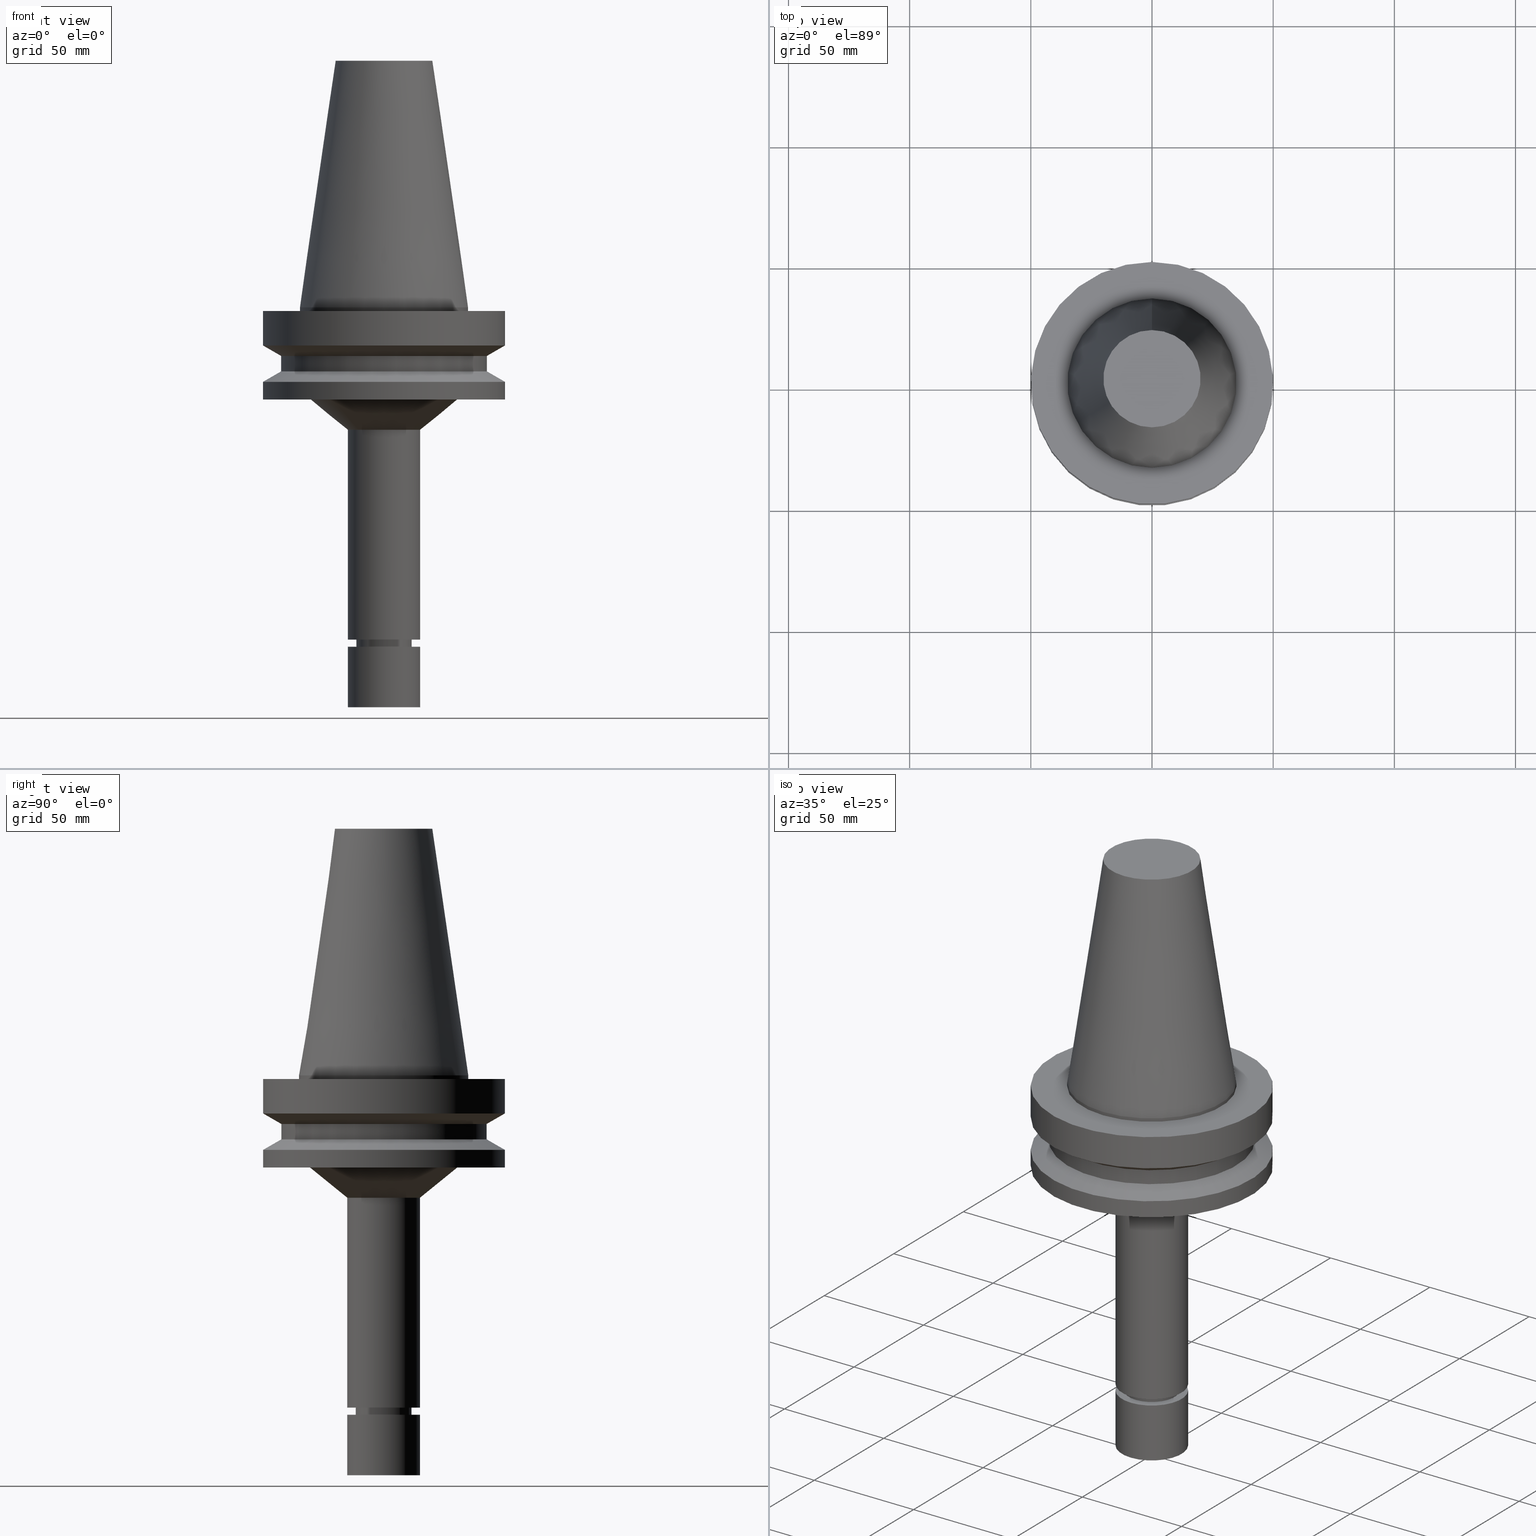
[diagram: canonical four-view strip — front | top / right | iso, engineering-drawing reading convention]
A machine part, canonical four-view strip (front | top / right | iso — engineering-drawing reading convention). The complete STEP part file that produces these views, byte-faithful:
ISO-10303-21;
HEADER;
FILE_DESCRIPTION((''),'1');
FILE_NAME('V:/90_\X2\53D65F9730C730FC30BF\X0\/00_\X2\6DE18DEF30C730FC30BF\X0\/ALL/BBT-BKUS\X2\FF76FF80FF9BFF78FF9E752852A05DE556F3\X0\201801/BBT50-MEGAER/BBT50-MEGAER16-165NL.stp','2018-02-02T07:56:17',(''),(''),'Spatial Interop R21 SP3','Kubotek KeyCreator 2011 V10.0.2 (22737)',' ');
FILE_SCHEMA(('automotive_design'));
ENDSEC;
DATA;
#1=MECHANICAL_DESIGN_GEOMETRIC_PRESENTATION_REPRESENTATION(' ',(#14,#15,#16,#17,#18,#19,#20,#21,#22,#23,#24,#25,#26,#27,#28,#29,#30,#31,#32,#33,#34,#35,#36,#37,#38,#39,#40,#41,#42,#43,#44,#45,#46,#47,#48,#49,#50,#51,#52,#53,#54,#55),#10);
#2=PRODUCT_DEFINITION_CONTEXT('',#56,'design');
#3=APPLICATION_PROTOCOL_DEFINITION('INTERNATIONAL STANDARD','automotive_design',1994,#56);
#4=PRODUCT_CATEGORY_RELATIONSHIP('NONE','NONE',#57,#58);
#5=SHAPE_DEFINITION_REPRESENTATION(#59,#60);
#6=PRODUCT_DEFINITION_CONTEXT('',#61,'design');
#7=APPLICATION_PROTOCOL_DEFINITION('INTERNATIONAL STANDARD','automotive_design',1994,#61);
#8=PRODUCT_CATEGORY_RELATIONSHIP('NONE','NONE',#62,#63);
#9=SHAPE_DEFINITION_REPRESENTATION(#64,#65);
#10= (GEOMETRIC_REPRESENTATION_CONTEXT(3)GLOBAL_UNCERTAINTY_ASSIGNED_CONTEXT((#68))GLOBAL_UNIT_ASSIGNED_CONTEXT((#70,#71,#72))REPRESENTATION_CONTEXT('NONE','WORKSPACE'));
#14=STYLED_ITEM('',(#74,#75),#76);
#15=STYLED_ITEM('',(#77,#78),#79);
#16=STYLED_ITEM('',(#80),#81);
#17=STYLED_ITEM('',(#82,#83),#84);
#18=STYLED_ITEM('',(#85,#86),#87);
#19=STYLED_ITEM('',(#88,#89),#90);
#20=STYLED_ITEM('',(#91,#92),#93);
#21=STYLED_ITEM('',(#94),#95);
#22=STYLED_ITEM('',(#96),#97);
#23=STYLED_ITEM('',(#98),#99);
#24=STYLED_ITEM('',(#100,#101),#102);
#25=STYLED_ITEM('',(#103,#104),#105);
#26=STYLED_ITEM('',(#106),#107);
#27=STYLED_ITEM('',(#108),#109);
#28=STYLED_ITEM('',(#110,#111),#112);
#29=STYLED_ITEM('',(#113,#114),#115);
#30=STYLED_ITEM('',(#116,#117),#118);
#31=STYLED_ITEM('',(#119,#120),#121);
#32=STYLED_ITEM('',(#122,#123),#124);
#33=STYLED_ITEM('',(#125),#126);
#34=STYLED_ITEM('',(#127),#128);
#35=STYLED_ITEM('',(#129),#130);
#36=STYLED_ITEM('',(#131,#132),#133);
#37=STYLED_ITEM('',(#134),#135);
#38=STYLED_ITEM('',(#136),#137);
#39=STYLED_ITEM('',(#138),#139);
#40=STYLED_ITEM('',(#140,#141),#142);
#41=STYLED_ITEM('',(#143),#144);
#42=STYLED_ITEM('',(#145),#146);
#43=STYLED_ITEM('',(#147,#148),#149);
#44=STYLED_ITEM('',(#150,#151),#152);
#45=STYLED_ITEM('',(#153,#154),#155);
#46=STYLED_ITEM('',(#156,#157),#158);
#47=STYLED_ITEM('',(#159),#160);
#48=STYLED_ITEM('',(#161,#162),#163);
#49=STYLED_ITEM('',(#164,#165),#166);
#50=STYLED_ITEM('',(#167,#168),#169);
#51=STYLED_ITEM('',(#170,#171),#172);
#52=STYLED_ITEM('',(#173),#174);
#53=STYLED_ITEM('',(#175),#176);
#54=STYLED_ITEM('',(#177),#178);
#55=STYLED_ITEM('',(#179),#180);
#56=APPLICATION_CONTEXT(' ');
#57=PRODUCT_CATEGORY('part','NONE');
#58=PRODUCT_RELATED_PRODUCT_CATEGORY('detail',' ',(#181));
#59=PRODUCT_DEFINITION_SHAPE('NONE','NONE',#182);
#60=ADVANCED_BREP_SHAPE_REPRESENTATION('Unnamed[1]',(#149,#183),#10);
#61=APPLICATION_CONTEXT(' ');
#62=PRODUCT_CATEGORY('part','NONE');
#63=PRODUCT_RELATED_PRODUCT_CATEGORY('detail',' ',(#184));
#64=PRODUCT_DEFINITION_SHAPE('NONE','NONE',#185);
#65=ADVANCED_BREP_SHAPE_REPRESENTATION('Unnamed[1]',(#166,#186),#10);
#68=UNCERTAINTY_MEASURE_WITH_UNIT(LENGTH_MEASURE(1.0E-006),#70,'','');
#70= (CONVERSION_BASED_UNIT('MILLIMETRE',#189)LENGTH_UNIT()NAMED_UNIT(#192));
#71= (NAMED_UNIT(#194)PLANE_ANGLE_UNIT()SI_UNIT($,.RADIAN.));
#72= (NAMED_UNIT(#194)SOLID_ANGLE_UNIT()SI_UNIT($,.STERADIAN.));
#74=PRESENTATION_STYLE_ASSIGNMENT((#200));
#75=PRESENTATION_STYLE_ASSIGNMENT((#201));
#76=ADVANCED_FACE('Unnamed[1]',(#202,#203),#204,.T.);
#77=PRESENTATION_STYLE_ASSIGNMENT((#205));
#78=PRESENTATION_STYLE_ASSIGNMENT((#206));
#79=ADVANCED_FACE('Unnamed[1]',(#207,#208),#209,.T.);
#80=PRESENTATION_STYLE_ASSIGNMENT((#210));
#81=EDGE_CURVE('Unnamed[1]',#211,#211,#212,.T.);
#82=PRESENTATION_STYLE_ASSIGNMENT((#213));
#83=PRESENTATION_STYLE_ASSIGNMENT((#214));
#84=ADVANCED_FACE('Unnamed[1]',(#215,#216),#217,.T.);
#85=PRESENTATION_STYLE_ASSIGNMENT((#218));
#86=PRESENTATION_STYLE_ASSIGNMENT((#219));
#87=ADVANCED_FACE('Unnamed[1]',(#220,#221),#222,.T.);
#88=PRESENTATION_STYLE_ASSIGNMENT((#223));
#89=PRESENTATION_STYLE_ASSIGNMENT((#224));
#90=ADVANCED_FACE('Unnamed[1]',(#225,#226),#227,.T.);
#91=PRESENTATION_STYLE_ASSIGNMENT((#228));
#92=PRESENTATION_STYLE_ASSIGNMENT((#229));
#93=ADVANCED_FACE('Unnamed[1]',(#230,#231),#232,.T.);
#94=PRESENTATION_STYLE_ASSIGNMENT((#233));
#95=EDGE_CURVE('Unnamed[1]',#234,#234,#235,.T.);
#96=PRESENTATION_STYLE_ASSIGNMENT((#236));
#97=EDGE_CURVE('Unnamed[1]',#237,#237,#238,.T.);
#98=PRESENTATION_STYLE_ASSIGNMENT((#239));
#99=EDGE_CURVE('Unnamed[1]',#240,#240,#241,.T.);
#100=PRESENTATION_STYLE_ASSIGNMENT((#242));
#101=PRESENTATION_STYLE_ASSIGNMENT((#243));
#102=ADVANCED_FACE('Unnamed[1]',(#244),#245,.T.);
#103=PRESENTATION_STYLE_ASSIGNMENT((#246));
#104=PRESENTATION_STYLE_ASSIGNMENT((#247));
#105=ADVANCED_FACE('Unnamed[1]',(#248),#249,.T.);
#106=PRESENTATION_STYLE_ASSIGNMENT((#250));
#107=EDGE_CURVE('Unnamed[1]',#251,#251,#252,.T.);
#108=PRESENTATION_STYLE_ASSIGNMENT((#253));
#109=EDGE_CURVE('Unnamed[1]',#254,#254,#255,.T.);
#110=PRESENTATION_STYLE_ASSIGNMENT((#256));
#111=PRESENTATION_STYLE_ASSIGNMENT((#257));
#112=ADVANCED_FACE('Unnamed[1]',(#258,#259),#260,.T.);
#113=PRESENTATION_STYLE_ASSIGNMENT((#261));
#114=PRESENTATION_STYLE_ASSIGNMENT((#262));
#115=ADVANCED_FACE('Unnamed[1]',(#263,#264),#265,.T.);
#116=PRESENTATION_STYLE_ASSIGNMENT((#266));
#117=PRESENTATION_STYLE_ASSIGNMENT((#267));
#118=ADVANCED_FACE('Unnamed[1]',(#268,#269),#270,.T.);
#119=PRESENTATION_STYLE_ASSIGNMENT((#271));
#120=PRESENTATION_STYLE_ASSIGNMENT((#272));
#121=ADVANCED_FACE('Unnamed[1]',(#273),#274,.T.);
#122=PRESENTATION_STYLE_ASSIGNMENT((#275));
#123=PRESENTATION_STYLE_ASSIGNMENT((#276));
#124=ADVANCED_FACE('Unnamed[1]',(#277,#278),#279,.T.);
#125=PRESENTATION_STYLE_ASSIGNMENT((#280));
#126=EDGE_CURVE('Unnamed[1]',#281,#281,#282,.T.);
#127=PRESENTATION_STYLE_ASSIGNMENT((#283));
#128=EDGE_CURVE('Unnamed[1]',#284,#284,#285,.T.);
#129=PRESENTATION_STYLE_ASSIGNMENT((#286));
#130=EDGE_CURVE('Unnamed[1]',#287,#287,#288,.T.);
#131=PRESENTATION_STYLE_ASSIGNMENT((#289));
#132=PRESENTATION_STYLE_ASSIGNMENT((#290));
#133=ADVANCED_FACE('Unnamed[1]',(#291),#292,.T.);
#134=PRESENTATION_STYLE_ASSIGNMENT((#293));
#135=EDGE_CURVE('Unnamed[1]',#294,#294,#295,.T.);
#136=PRESENTATION_STYLE_ASSIGNMENT((#296));
#137=EDGE_CURVE('Unnamed[1]',#297,#297,#298,.T.);
#138=PRESENTATION_STYLE_ASSIGNMENT((#299));
#139=EDGE_CURVE('Unnamed[1]',#300,#300,#301,.T.);
#140=PRESENTATION_STYLE_ASSIGNMENT((#302));
#141=PRESENTATION_STYLE_ASSIGNMENT((#303));
#142=ADVANCED_FACE('Unnamed[1]',(#304,#305),#306,.T.);
#143=PRESENTATION_STYLE_ASSIGNMENT((#307));
#144=EDGE_CURVE('Unnamed[1]',#308,#308,#309,.T.);
#145=PRESENTATION_STYLE_ASSIGNMENT((#310));
#146=EDGE_CURVE('Unnamed[1]',#311,#311,#312,.T.);
#147=PRESENTATION_STYLE_ASSIGNMENT((#313));
#148=PRESENTATION_STYLE_ASSIGNMENT((#314));
#149=MANIFOLD_SOLID_BREP('Unnamed[1]',#315);
#150=PRESENTATION_STYLE_ASSIGNMENT((#316));
#151=PRESENTATION_STYLE_ASSIGNMENT((#317));
#152=ADVANCED_FACE('Unnamed[1]',(#318,#319),#320,.T.);
#153=PRESENTATION_STYLE_ASSIGNMENT((#321));
#154=PRESENTATION_STYLE_ASSIGNMENT((#322));
#155=ADVANCED_FACE('Unnamed[1]',(#323,#324),#325,.T.);
#156=PRESENTATION_STYLE_ASSIGNMENT((#326));
#157=PRESENTATION_STYLE_ASSIGNMENT((#327));
#158=ADVANCED_FACE('Unnamed[1]',(#328,#329),#330,.T.);
#159=PRESENTATION_STYLE_ASSIGNMENT((#331));
#160=EDGE_CURVE('Unnamed[1]',#332,#332,#333,.T.);
#161=PRESENTATION_STYLE_ASSIGNMENT((#334));
#162=PRESENTATION_STYLE_ASSIGNMENT((#335));
#163=ADVANCED_FACE('Unnamed[1]',(#336,#337),#338,.T.);
#164=PRESENTATION_STYLE_ASSIGNMENT((#339));
#165=PRESENTATION_STYLE_ASSIGNMENT((#340));
#166=MANIFOLD_SOLID_BREP('Unnamed[1]',#341);
#167=PRESENTATION_STYLE_ASSIGNMENT((#342));
#168=PRESENTATION_STYLE_ASSIGNMENT((#343));
#169=ADVANCED_FACE('Unnamed[1]',(#344,#345),#346,.T.);
#170=PRESENTATION_STYLE_ASSIGNMENT((#347));
#171=PRESENTATION_STYLE_ASSIGNMENT((#348));
#172=ADVANCED_FACE('Unnamed[1]',(#349,#350),#351,.T.);
#173=PRESENTATION_STYLE_ASSIGNMENT((#352));
#174=EDGE_CURVE('Unnamed[1]',#353,#353,#354,.T.);
#175=PRESENTATION_STYLE_ASSIGNMENT((#355));
#176=EDGE_CURVE('Unnamed[1]',#356,#356,#357,.T.);
#177=PRESENTATION_STYLE_ASSIGNMENT((#358));
#178=EDGE_CURVE('Unnamed[1]',#359,#359,#360,.T.);
#179=PRESENTATION_STYLE_ASSIGNMENT((#361));
#180=EDGE_CURVE('Unnamed[1]',#362,#362,#363,.T.);
#181=PRODUCT('Unnamed[1]','Unnamed[1]','PART-Unnamed[1]-DESC',(#364));
#182=PRODUCT_DEFINITION('NONE','NONE',#365,#2);
#183=AXIS2_PLACEMENT_3D('',#366,#367,#368);
#184=PRODUCT('Unnamed[1]','Unnamed[1]','PART-Unnamed[1]-DESC',(#369));
#185=PRODUCT_DEFINITION('NONE','NONE',#370,#6);
#186=AXIS2_PLACEMENT_3D('',#371,#372,#373);
#189=LENGTH_MEASURE_WITH_UNIT(LENGTH_MEASURE(1.0),#374);
#192=DIMENSIONAL_EXPONENTS(1.0,0.0,0.0,0.0,0.0,0.0,0.0);
#194=DIMENSIONAL_EXPONENTS(0.0,0.0,0.0,0.0,0.0,0.0,0.0);
#200=SURFACE_STYLE_USAGE(.BOTH.,#375);
#201=CURVE_STYLE('',#376,POSITIVE_LENGTH_MEASURE(1000.0),#377);
#202=FACE_BOUND('',#378,.T.);
#203=FACE_BOUND('',#379,.T.);
#204=CYLINDRICAL_SURFACE('',#380,11.4999999999964);
#205=SURFACE_STYLE_USAGE(.BOTH.,#381);
#206=CURVE_STYLE('',#382,POSITIVE_LENGTH_MEASURE(1000.0),#383);
#207=FACE_BOUND('',#384,.T.);
#208=FACE_BOUND('',#385,.T.);
#209=CONICAL_SURFACE('',#386,46.25,1.04719755108882);
#210=CURVE_STYLE('',#387,POSITIVE_LENGTH_MEASURE(1000.0),#388);
#211=VERTEX_POINT('',#389);
#212=CIRCLE('',#390,34.925);
#213=SURFACE_STYLE_USAGE(.BOTH.,#391);
#214=CURVE_STYLE('',#392,POSITIVE_LENGTH_MEASURE(1000.0),#393);
#215=FACE_BOUND('',#394,.T.);
#216=FACE_BOUND('',#395,.T.);
#217=CONICAL_SURFACE('',#396,46.25,1.04719755108882);
#218=SURFACE_STYLE_USAGE(.BOTH.,#397);
#219=CURVE_STYLE('',#398,POSITIVE_LENGTH_MEASURE(1000.0),#399);
#220=FACE_BOUND('',#400,.T.);
#221=FACE_BOUND('',#401,.T.);
#222=CONICAL_SURFACE('',#402,10.4499999999999,0.523598775598244);
#223=SURFACE_STYLE_USAGE(.BOTH.,#403);
#224=CURVE_STYLE('',#404,POSITIVE_LENGTH_MEASURE(1000.0),#405);
#225=FACE_BOUND('',#406,.T.);
#226=FACE_BOUND('',#407,.T.);
#227=CONICAL_SURFACE('',#408,22.6818898842099,0.889162048815194);
#228=SURFACE_STYLE_USAGE(.BOTH.,#409);
#229=CURVE_STYLE('',#410,POSITIVE_LENGTH_MEASURE(1000.0),#411);
#230=FACE_BOUND('',#412,.T.);
#231=FACE_BOUND('',#413,.T.);
#232=CYLINDRICAL_SURFACE('',#414,34.925);
#233=CURVE_STYLE('',#415,POSITIVE_LENGTH_MEASURE(1000.0),#416);
#234=VERTEX_POINT('',#417);
#235=CIRCLE('',#418,50.0);
#236=CURVE_STYLE('',#419,POSITIVE_LENGTH_MEASURE(1000.0),#420);
#237=VERTEX_POINT('',#421);
#238=CIRCLE('',#422,15.0000000000001);
#239=CURVE_STYLE('',#423,POSITIVE_LENGTH_MEASURE(1000.0),#424);
#240=VERTEX_POINT('',#425);
#241=CIRCLE('',#426,50.0);
#242=SURFACE_STYLE_USAGE(.BOTH.,#427);
#243=CURVE_STYLE('',#428,POSITIVE_LENGTH_MEASURE(1000.0),#429);
#244=FACE_OUTER_BOUND('',#430,.T.);
#245=PLANE('',#431);
#246=SURFACE_STYLE_USAGE(.BOTH.,#432);
#247=CURVE_STYLE('',#433,POSITIVE_LENGTH_MEASURE(1000.0),#434);
#248=FACE_OUTER_BOUND('',#435,.T.);
#249=PLANE('',#436);
#250=CURVE_STYLE('',#437,POSITIVE_LENGTH_MEASURE(1000.0),#438);
#251=VERTEX_POINT('',#439);
#252=CIRCLE('',#440,9.89999999999961);
#253=CURVE_STYLE('',#441,POSITIVE_LENGTH_MEASURE(1000.0),#442);
#254=VERTEX_POINT('',#443);
#255=CIRCLE('',#444,10.9999999999999);
#256=SURFACE_STYLE_USAGE(.BOTH.,#445);
#257=CURVE_STYLE('',#446,POSITIVE_LENGTH_MEASURE(1000.0),#447);
#258=FACE_BOUND('',#448,.T.);
#259=FACE_BOUND('',#449,.T.);
#260=CYLINDRICAL_SURFACE('',#450,15.0);
#261=SURFACE_STYLE_USAGE(.BOTH.,#451);
#262=CURVE_STYLE('',#452,POSITIVE_LENGTH_MEASURE(1000.0),#453);
#263=FACE_BOUND('',#454,.T.);
#264=FACE_BOUND('',#455,.T.);
#265=CYLINDRICAL_SURFACE('',#456,50.0);
#266=SURFACE_STYLE_USAGE(.BOTH.,#457);
#267=CURVE_STYLE('',#458,POSITIVE_LENGTH_MEASURE(1000.0),#459);
#268=FACE_BOUND('',#460,.T.);
#269=FACE_BOUND('',#461,.T.);
#270=CYLINDRICAL_SURFACE('',#462,11.0000000000001);
#271=SURFACE_STYLE_USAGE(.BOTH.,#463);
#272=CURVE_STYLE('',#464,POSITIVE_LENGTH_MEASURE(1000.0),#465);
#273=FACE_OUTER_BOUND('',#466,.T.);
#274=PLANE('',#467);
#275=SURFACE_STYLE_USAGE(.BOTH.,#468);
#276=CURVE_STYLE('',#469,POSITIVE_LENGTH_MEASURE(1000.0),#470);
#277=FACE_BOUND('',#471,.T.);
#278=FACE_OUTER_BOUND('',#472,.T.);
#279=PLANE('',#473);
#280=CURVE_STYLE('',#474,POSITIVE_LENGTH_MEASURE(1000.0),#475);
#281=VERTEX_POINT('',#476);
#282=CIRCLE('',#477,15.0000000000002);
#283=CURVE_STYLE('',#478,POSITIVE_LENGTH_MEASURE(1000.0),#479);
#284=VERTEX_POINT('',#480);
#285=CIRCLE('',#481,15.0);
#286=CURVE_STYLE('',#482,POSITIVE_LENGTH_MEASURE(1000.0),#483);
#287=VERTEX_POINT('',#484);
#288=CIRCLE('',#485,50.0);
#289=SURFACE_STYLE_USAGE(.BOTH.,#486);
#290=CURVE_STYLE('',#487,POSITIVE_LENGTH_MEASURE(1000.0),#488);
#291=FACE_OUTER_BOUND('',#489,.T.);
#292=PLANE('',#490);
#293=CURVE_STYLE('',#491,POSITIVE_LENGTH_MEASURE(1000.0),#492);
#294=VERTEX_POINT('',#493);
#295=CIRCLE('',#494,11.5000000000021);
#296=CURVE_STYLE('',#495,POSITIVE_LENGTH_MEASURE(1000.0),#496);
#297=VERTEX_POINT('',#497);
#298=CIRCLE('',#498,30.3637797684197);
#299=CURVE_STYLE('',#499,POSITIVE_LENGTH_MEASURE(1000.0),#500);
#300=VERTEX_POINT('',#501);
#301=CIRCLE('',#502,20.0791666651884);
#302=SURFACE_STYLE_USAGE(.BOTH.,#503);
#303=CURVE_STYLE('',#504,POSITIVE_LENGTH_MEASURE(1000.0),#505);
#304=FACE_OUTER_BOUND('',#506,.T.);
#305=FACE_BOUND('',#507,.T.);
#306=PLANE('',#508);
#307=CURVE_STYLE('',#509,POSITIVE_LENGTH_MEASURE(1000.0),#510);
#308=VERTEX_POINT('',#511);
#309=CIRCLE('',#512,42.5);
#310=CURVE_STYLE('',#513,POSITIVE_LENGTH_MEASURE(1000.0),#514);
#311=VERTEX_POINT('',#515);
#312=CIRCLE('',#516,11.4999999999907);
#313=SURFACE_STYLE_USAGE(.BOTH.,#517);
#314=CURVE_STYLE('',#518,POSITIVE_LENGTH_MEASURE(1000.0),#519);
#315=CLOSED_SHELL('',(#121,#87,#118,#152,#76,#163,#169,#90,#142,#115,#79,#158,#84,#155,#124,#93,#172,#105));
#316=SURFACE_STYLE_USAGE(.BOTH.,#520);
#317=CURVE_STYLE('',#521,POSITIVE_LENGTH_MEASURE(1000.0),#522);
#318=FACE_BOUND('',#523,.T.);
#319=FACE_BOUND('',#524,.T.);
#320=CONICAL_SURFACE('',#525,11.250000000001,1.04719755118891);
#321=SURFACE_STYLE_USAGE(.BOTH.,#526);
#322=CURVE_STYLE('',#527,POSITIVE_LENGTH_MEASURE(1000.0),#528);
#323=FACE_BOUND('',#529,.T.);
#324=FACE_BOUND('',#530,.T.);
#325=CYLINDRICAL_SURFACE('',#531,50.0);
#326=SURFACE_STYLE_USAGE(.BOTH.,#532);
#327=CURVE_STYLE('',#533,POSITIVE_LENGTH_MEASURE(1000.0),#534);
#328=FACE_BOUND('',#535,.T.);
#329=FACE_BOUND('',#536,.T.);
#330=CYLINDRICAL_SURFACE('',#537,42.5);
#331=CURVE_STYLE('',#538,POSITIVE_LENGTH_MEASURE(1000.0),#539);
#332=VERTEX_POINT('',#540);
#333=CIRCLE('',#541,15.0000000000001);
#334=SURFACE_STYLE_USAGE(.BOTH.,#542);
#335=CURVE_STYLE('',#543,POSITIVE_LENGTH_MEASURE(1000.0),#544);
#336=FACE_OUTER_BOUND('',#545,.T.);
#337=FACE_BOUND('',#546,.T.);
#338=PLANE('',#547);
#339=SURFACE_STYLE_USAGE(.BOTH.,#548);
#340=CURVE_STYLE('',#549,POSITIVE_LENGTH_MEASURE(1000.0),#550);
#341=CLOSED_SHELL('',(#133,#102,#112));
#342=SURFACE_STYLE_USAGE(.BOTH.,#551);
#343=CURVE_STYLE('',#552,POSITIVE_LENGTH_MEASURE(1000.0),#553);
#344=FACE_BOUND('',#554,.T.);
#345=FACE_BOUND('',#555,.T.);
#346=CYLINDRICAL_SURFACE('',#556,15.0000000000002);
#347=SURFACE_STYLE_USAGE(.BOTH.,#557);
#348=CURVE_STYLE('',#558,POSITIVE_LENGTH_MEASURE(1000.0),#559);
#349=FACE_BOUND('',#560,.T.);
#350=FACE_BOUND('',#561,.T.);
#351=CONICAL_SURFACE('',#562,27.5020833325942,0.144812498253157);
#352=CURVE_STYLE('',#563,POSITIVE_LENGTH_MEASURE(1000.0),#564);
#353=VERTEX_POINT('',#565);
#354=CIRCLE('',#566,42.5);
#355=CURVE_STYLE('',#567,POSITIVE_LENGTH_MEASURE(1000.0),#568);
#356=VERTEX_POINT('',#569);
#357=CIRCLE('',#570,34.925);
#358=CURVE_STYLE('',#571,POSITIVE_LENGTH_MEASURE(1000.0),#572);
#359=VERTEX_POINT('',#573);
#360=CIRCLE('',#574,11.0000000000002);
#361=CURVE_STYLE('',#575,POSITIVE_LENGTH_MEASURE(1000.0),#576);
#362=VERTEX_POINT('',#577);
#363=CIRCLE('',#578,50.0);
#364=PRODUCT_CONTEXT('',#56,'mechanical');
#365=PRODUCT_DEFINITION_FORMATION_WITH_SPECIFIED_SOURCE(' ','NONE',#181,.NOT_KNOWN.);
#366=CARTESIAN_POINT('',(0.0,0.0,0.0));
#367=DIRECTION('',(0.0,0.0,1.0));
#368=DIRECTION('',(1.0,0.0,0.0));
#369=PRODUCT_CONTEXT('',#61,'mechanical');
#370=PRODUCT_DEFINITION_FORMATION_WITH_SPECIFIED_SOURCE(' ','NONE',#184,.NOT_KNOWN.);
#371=CARTESIAN_POINT('',(0.0,0.0,0.0));
#372=DIRECTION('',(0.0,0.0,1.0));
#373=DIRECTION('',(1.0,0.0,0.0));
#374= (NAMED_UNIT(#192)LENGTH_UNIT()SI_UNIT(.MILLI.,.METRE.));
#375=SURFACE_SIDE_STYLE('',(#580));
#376=DRAUGHTING_PRE_DEFINED_CURVE_FONT('continuous');
#377=COLOUR_RGB('',0.0,1.0,0.0);
#378=EDGE_LOOP('',(#581));
#379=EDGE_LOOP('',(#582));
#380=AXIS2_PLACEMENT_3D('',#583,#584,#585);
#381=SURFACE_SIDE_STYLE('',(#586));
#382=DRAUGHTING_PRE_DEFINED_CURVE_FONT('continuous');
#383=COLOUR_RGB('',0.0,1.0,0.0);
#384=EDGE_LOOP('',(#587));
#385=EDGE_LOOP('',(#588));
#386=AXIS2_PLACEMENT_3D('',#589,#590,#591);
#387=DRAUGHTING_PRE_DEFINED_CURVE_FONT('continuous');
#388=COLOUR_RGB('',0.0,1.0,0.0);
#389=CARTESIAN_POINT('',(9.18485099360511E-017,34.925,-1.5));
#390=AXIS2_PLACEMENT_3D('',#592,#593,#594);
#391=SURFACE_SIDE_STYLE('',(#595));
#392=DRAUGHTING_PRE_DEFINED_CURVE_FONT('continuous');
#393=COLOUR_RGB('',0.0,1.0,0.0);
#394=EDGE_LOOP('',(#596));
#395=EDGE_LOOP('',(#597));
#396=AXIS2_PLACEMENT_3D('',#598,#599,#600);
#397=SURFACE_SIDE_STYLE('',(#601));
#398=DRAUGHTING_PRE_DEFINED_CURVE_FONT('continuous');
#399=COLOUR_RGB('',0.0,1.0,0.0);
#400=EDGE_LOOP('',(#602));
#401=EDGE_LOOP('',(#603));
#402=AXIS2_PLACEMENT_3D('',#604,#605,#606);
#403=SURFACE_SIDE_STYLE('',(#607));
#404=DRAUGHTING_PRE_DEFINED_CURVE_FONT('continuous');
#405=COLOUR_RGB('',0.0,1.0,0.0);
#406=EDGE_LOOP('',(#608));
#407=EDGE_LOOP('',(#609));
#408=AXIS2_PLACEMENT_3D('',#610,#611,#612);
#409=SURFACE_SIDE_STYLE('',(#613));
#410=DRAUGHTING_PRE_DEFINED_CURVE_FONT('continuous');
#411=COLOUR_RGB('',0.0,1.0,0.0);
#412=EDGE_LOOP('',(#614));
#413=EDGE_LOOP('',(#615));
#414=AXIS2_PLACEMENT_3D('',#616,#617,#618);
#415=DRAUGHTING_PRE_DEFINED_CURVE_FONT('continuous');
#416=COLOUR_RGB('',0.0,1.0,0.0);
#417=CARTESIAN_POINT('',(9.61347737330674E-016,50.0,-15.7));
#418=AXIS2_PLACEMENT_3D('',#619,#620,#621);
#419=DRAUGHTING_PRE_DEFINED_CURVE_FONT('continuous');
#420=COLOUR_RGB('',0.0,1.0,0.0);
#421=CARTESIAN_POINT('',(8.57252759403147E-015,15.0000000000001,-140.0));
#422=AXIS2_PLACEMENT_3D('',#622,#623,#624);
#423=DRAUGHTING_PRE_DEFINED_CURVE_FONT('continuous');
#424=COLOUR_RGB('',0.0,1.0,0.0);
#425=CARTESIAN_POINT('',(9.18485099360509E-017,50.0,-1.49999999999999));
#426=AXIS2_PLACEMENT_3D('',#625,#626,#627);
#427=SURFACE_SIDE_STYLE('',(#628));
#428=DRAUGHTING_PRE_DEFINED_CURVE_FONT('continuous');
#429=COLOUR_RGB('',0.0,1.0,0.0);
#430=EDGE_LOOP('',(#629));
#431=AXIS2_PLACEMENT_3D('',#630,#631,#632);
#432=SURFACE_SIDE_STYLE('',(#633));
#433=DRAUGHTING_PRE_DEFINED_CURVE_FONT('continuous');
#434=COLOUR_RGB('',0.0,1.0,0.0);
#435=EDGE_LOOP('',(#634));
#436=AXIS2_PLACEMENT_3D('',#635,#636,#637);
#437=DRAUGHTING_PRE_DEFINED_CURVE_FONT('continuous');
#438=COLOUR_RGB('',0.0,1.0,0.0);
#439=CARTESIAN_POINT('',(9.56449150134077E-015,9.89999999999964,-156.199999999999));
#440=AXIS2_PLACEMENT_3D('',#638,#639,#640);
#441=DRAUGHTING_PRE_DEFINED_CURVE_FONT('continuous');
#442=COLOUR_RGB('',0.0,1.0,0.0);
#443=CARTESIAN_POINT('',(8.76847108189496E-015,10.9999999999999,-143.199999999998));
#444=AXIS2_PLACEMENT_3D('',#641,#642,#643);
#445=SURFACE_SIDE_STYLE('',(#644));
#446=DRAUGHTING_PRE_DEFINED_CURVE_FONT('continuous');
#447=COLOUR_RGB('',0.0,1.0,0.0);
#448=EDGE_LOOP('',(#645));
#449=EDGE_LOOP('',(#646));
#450=AXIS2_PLACEMENT_3D('',#647,#648,#649);
#451=SURFACE_SIDE_STYLE('',(#650));
#452=DRAUGHTING_PRE_DEFINED_CURVE_FONT('continuous');
#453=COLOUR_RGB('',0.0,1.0,0.0);
#454=EDGE_LOOP('',(#651));
#455=EDGE_LOOP('',(#652));
#456=AXIS2_PLACEMENT_3D('',#653,#654,#655);
#457=SURFACE_SIDE_STYLE('',(#656));
#458=DRAUGHTING_PRE_DEFINED_CURVE_FONT('continuous');
#459=COLOUR_RGB('',0.0,1.0,0.0);
#460=EDGE_LOOP('',(#657));
#461=EDGE_LOOP('',(#658));
#462=AXIS2_PLACEMENT_3D('',#659,#660,#661);
#463=SURFACE_SIDE_STYLE('',(#662));
#464=DRAUGHTING_PRE_DEFINED_CURVE_FONT('continuous');
#465=COLOUR_RGB('',0.0,1.0,0.0);
#466=EDGE_LOOP('',(#663));
#467=AXIS2_PLACEMENT_3D('',#664,#665,#666);
#468=SURFACE_SIDE_STYLE('',(#667));
#469=DRAUGHTING_PRE_DEFINED_CURVE_FONT('continuous');
#470=COLOUR_RGB('',0.0,1.0,0.0);
#471=EDGE_LOOP('',(#668));
#472=EDGE_LOOP('',(#669));
#473=AXIS2_PLACEMENT_3D('',#670,#671,#672);
#474=DRAUGHTING_PRE_DEFINED_CURVE_FONT('continuous');
#475=COLOUR_RGB('',0.0,1.0,0.0);
#476=CARTESIAN_POINT('',(8.39495380815506E-015,15.0000000000002,-137.099999999999));
#477=AXIS2_PLACEMENT_3D('',#673,#674,#675);
#478=DRAUGHTING_PRE_DEFINED_CURVE_FONT('continuous');
#479=COLOUR_RGB('',0.0,1.0,0.0);
#480=CARTESIAN_POINT('',(1.01033360929657E-014,15.0,-165.0));
#481=AXIS2_PLACEMENT_3D('',#676,#677,#678);
#482=DRAUGHTING_PRE_DEFINED_CURVE_FONT('continuous');
#483=COLOUR_RGB('',0.0,1.0,0.0);
#484=CARTESIAN_POINT('',(2.32682891837996E-015,50.0,-37.9999999999998));
#485=AXIS2_PLACEMENT_3D('',#679,#680,#681);
#486=SURFACE_SIDE_STYLE('',(#682));
#487=DRAUGHTING_PRE_DEFINED_CURVE_FONT('continuous');
#488=COLOUR_RGB('',0.0,1.0,0.0);
#489=EDGE_LOOP('',(#683));
#490=AXIS2_PLACEMENT_3D('',#684,#685,#686);
#491=DRAUGHTING_PRE_DEFINED_CURVE_FONT('continuous');
#492=COLOUR_RGB('',0.0,1.0,0.0);
#493=CARTESIAN_POINT('',(8.75079482791582E-015,11.5000000000021,-142.911324865397));
#494=AXIS2_PLACEMENT_3D('',#687,#688,#689);
#495=DRAUGHTING_PRE_DEFINED_CURVE_FONT('continuous');
#496=COLOUR_RGB('',0.0,1.0,0.0);
#497=CARTESIAN_POINT('',(2.32682891837996E-015,30.3637797684197,-37.9999999999998));
#498=AXIS2_PLACEMENT_3D('',#690,#691,#692);
#499=DRAUGHTING_PRE_DEFINED_CURVE_FONT('continuous');
#500=COLOUR_RGB('',0.0,1.0,0.0);
#501=CARTESIAN_POINT('',(-6.23345220766003E-015,20.0791666651884,101.8));
#502=AXIS2_PLACEMENT_3D('',#693,#694,#695);
#503=SURFACE_SIDE_STYLE('',(#696));
#504=DRAUGHTING_PRE_DEFINED_CURVE_FONT('continuous');
#505=COLOUR_RGB('',0.0,1.0,0.0);
#506=EDGE_LOOP('',(#697));
#507=EDGE_LOOP('',(#698));
#508=AXIS2_PLACEMENT_3D('',#699,#700,#701);
#509=DRAUGHTING_PRE_DEFINED_CURVE_FONT('continuous');
#510=COLOUR_RGB('',0.0,1.0,0.0);
#511=CARTESIAN_POINT('',(1.2264915470779E-015,42.5,-20.03012702));
#512=AXIS2_PLACEMENT_3D('',#702,#703,#704);
#513=DRAUGHTING_PRE_DEFINED_CURVE_FONT('continuous');
#514=COLOUR_RGB('',0.0,1.0,0.0);
#515=CARTESIAN_POINT('',(8.39495380815511E-015,11.4999999999907,-137.1));
#516=AXIS2_PLACEMENT_3D('',#705,#706,#707);
#517=SURFACE_SIDE_STYLE('',(#708));
#518=DRAUGHTING_PRE_DEFINED_CURVE_FONT('continuous');
#519=COLOUR_RGB('',0.0,1.0,0.0);
#520=SURFACE_SIDE_STYLE('',(#709));
#521=DRAUGHTING_PRE_DEFINED_CURVE_FONT('continuous');
#522=COLOUR_RGB('',0.0,1.0,0.0);
#523=EDGE_LOOP('',(#710));
#524=EDGE_LOOP('',(#711));
#525=AXIS2_PLACEMENT_3D('',#712,#713,#714);
#526=SURFACE_SIDE_STYLE('',(#715));
#527=DRAUGHTING_PRE_DEFINED_CURVE_FONT('continuous');
#528=COLOUR_RGB('',0.0,1.0,0.0);
#529=EDGE_LOOP('',(#716));
#530=EDGE_LOOP('',(#717));
#531=AXIS2_PLACEMENT_3D('',#718,#719,#720);
#532=SURFACE_SIDE_STYLE('',(#721));
#533=DRAUGHTING_PRE_DEFINED_CURVE_FONT('continuous');
#534=COLOUR_RGB('',0.0,1.0,0.0);
#535=EDGE_LOOP('',(#722));
#536=EDGE_LOOP('',(#723));
#537=AXIS2_PLACEMENT_3D('',#724,#725,#726);
#538=DRAUGHTING_PRE_DEFINED_CURVE_FONT('continuous');
#539=COLOUR_RGB('',0.0,1.0,0.0);
#540=CARTESIAN_POINT('',(3.09013157343733E-015,15.0000000000001,-50.4656783586712));
#541=AXIS2_PLACEMENT_3D('',#727,#728,#729);
#542=SURFACE_SIDE_STYLE('',(#730));
#543=DRAUGHTING_PRE_DEFINED_CURVE_FONT('continuous');
#544=COLOUR_RGB('',0.0,1.0,0.0);
#545=EDGE_LOOP('',(#731));
#546=EDGE_LOOP('',(#732));
#547=AXIS2_PLACEMENT_3D('',#733,#734,#735);
#548=SURFACE_SIDE_STYLE('',(#736));
#549=DRAUGHTING_PRE_DEFINED_CURVE_FONT('continuous');
#550=COLOUR_RGB('',0.0,1.0,0.0);
#551=SURFACE_SIDE_STYLE('',(#737));
#552=DRAUGHTING_PRE_DEFINED_CURVE_FONT('continuous');
#553=COLOUR_RGB('',0.0,1.0,0.0);
#554=EDGE_LOOP('',(#738));
#555=EDGE_LOOP('',(#739));
#556=AXIS2_PLACEMENT_3D('',#740,#741,#742);
#557=SURFACE_SIDE_STYLE('',(#743));
#558=DRAUGHTING_PRE_DEFINED_CURVE_FONT('continuous');
#559=COLOUR_RGB('',0.0,1.0,0.0);
#560=EDGE_LOOP('',(#744));
#561=EDGE_LOOP('',(#745));
#562=AXIS2_PLACEMENT_3D('',#746,#747,#748);
#563=DRAUGHTING_PRE_DEFINED_CURVE_FONT('continuous');
#564=COLOUR_RGB('',0.0,1.0,0.0);
#565=CARTESIAN_POINT('',(1.61468902694397E-015,42.5,-26.3698729800001));
#566=AXIS2_PLACEMENT_3D('',#749,#750,#751);
#567=DRAUGHTING_PRE_DEFINED_CURVE_FONT('continuous');
#568=COLOUR_RGB('',0.0,1.0,0.0);
#569=CARTESIAN_POINT('',(-4.30483861169435E-031,34.925,4.27707894602213E-015));
#570=AXIS2_PLACEMENT_3D('',#752,#753,#754);
#571=DRAUGHTING_PRE_DEFINED_CURVE_FONT('continuous');
#572=COLOUR_RGB('',0.0,1.0,0.0);
#573=CARTESIAN_POINT('',(9.44782822508095E-015,11.0000000000003,-154.294744111672));
#574=AXIS2_PLACEMENT_3D('',#755,#756,#757);
#575=DRAUGHTING_PRE_DEFINED_CURVE_FONT('continuous');
#576=COLOUR_RGB('',0.0,1.0,0.0);
#577=CARTESIAN_POINT('',(1.87983283669119E-015,50.0,-30.7000000000001));
#578=AXIS2_PLACEMENT_3D('',#758,#759,#760);
#580=SURFACE_STYLE_FILL_AREA(#761);
#581=ORIENTED_EDGE('',*,*,#146,.F.);
#582=ORIENTED_EDGE('',*,*,#135,.T.);
#583=CARTESIAN_POINT('',(8.57287431803547E-015,1.96213998329568E-014,-140.005662432699));
#584=DIRECTION('',(-6.12323399573677E-017,-2.72265846766223E-017,1.0));
#585=DIRECTION('',(-6.49430021956811E-033,1.0,2.72265846766223E-017));
#586=SURFACE_STYLE_FILL_AREA(#762);
#587=ORIENTED_EDGE('',*,*,#174,.F.);
#588=ORIENTED_EDGE('',*,*,#180,.T.);
#589=CARTESIAN_POINT('',(1.74726093181758E-015,1.65864326741113E-014,-28.5349364900001));
#590=DIRECTION('',(6.12323399573677E-017,2.72265846766479E-017,-1.0));
#591=DIRECTION('',(-6.49430021957206E-033,1.0,2.72265846766479E-017));
#592=CARTESIAN_POINT('',(9.18485099360515E-017,1.58503636865388E-014,-1.5));
#593=DIRECTION('',(-6.12323399573677E-017,-2.72265846766536E-017,1.0));
#594=DIRECTION('',(-6.4943002195703E-033,1.0,2.72265846766536E-017));
#595=SURFACE_STYLE_FILL_AREA(#763);
#596=ORIENTED_EDGE('',*,*,#95,.F.);
#597=ORIENTED_EDGE('',*,*,#144,.T.);
#598=CARTESIAN_POINT('',(1.09391964220429E-015,1.62959284739324E-014,-17.86506351));
#599=DIRECTION('',(-6.12323399573677E-017,-2.72265846766479E-017,1.0));
#600=DIRECTION('',(-6.49430021957206E-033,1.0,2.72265846766479E-017));
#601=SURFACE_STYLE_FILL_AREA(#764);
#602=ORIENTED_EDGE('',*,*,#178,.F.);
#603=ORIENTED_EDGE('',*,*,#107,.T.);
#604=CARTESIAN_POINT('',(9.50615986321086E-015,2.00363795306279E-014,-155.247372055835));
#605=DIRECTION('',(-6.12323399573677E-017,-2.72265846766435E-017,1.0));
#606=DIRECTION('',(-6.49430021957156E-033,1.0,2.72265846766435E-017));
#607=SURFACE_STYLE_FILL_AREA(#765);
#608=ORIENTED_EDGE('',*,*,#137,.F.);
#609=ORIENTED_EDGE('',*,*,#160,.T.);
#610=CARTESIAN_POINT('',(2.70848024590864E-015,1.70138329509282E-014,-44.2328391793355));
#611=DIRECTION('',(-6.12323399573677E-017,-2.72265846766188E-017,1.0));
#612=DIRECTION('',(-6.49430021956628E-033,1.0,2.72265846766188E-017));
#613=SURFACE_STYLE_FILL_AREA(#766);
#614=ORIENTED_EDGE('',*,*,#176,.F.);
#615=ORIENTED_EDGE('',*,*,#81,.T.);
#616=CARTESIAN_POINT('',(4.59242549680257E-017,1.58299437480313E-014,-0.75));
#617=DIRECTION('',(-6.12323399573677E-017,-2.72265846766536E-017,1.0));
#618=DIRECTION('',(-6.4943002195703E-033,1.0,2.72265846766536E-017));
#619=CARTESIAN_POINT('',(9.61347737330675E-016,1.62369811889471E-014,-15.7));
#620=DIRECTION('',(-6.12323399573677E-017,-2.72265846766671E-017,1.0));
#621=DIRECTION('',(-6.49430021956856E-033,1.0,2.72265846766671E-017));
#622=CARTESIAN_POINT('',(8.57252759403147E-015,1.96212456642534E-014,-140.0));
#623=DIRECTION('',(6.12323399573677E-017,2.72265846766401E-017,-1.0));
#624=DIRECTION('',(-6.4943002195671E-033,1.0,2.72265846766401E-017));
#625=CARTESIAN_POINT('',(9.18485099360515E-017,1.58503636865388E-014,-1.5));
#626=DIRECTION('',(-6.12323399573677E-017,-2.72265846766671E-017,1.0));
#627=DIRECTION('',(-6.49430021956856E-033,1.0,2.72265846766671E-017));
#628=SURFACE_STYLE_FILL_AREA(#767);
#629=ORIENTED_EDGE('',*,*,#97,.F.);
#630=CARTESIAN_POINT('',(8.57252759403147E-015,7.50000000000005,-140.0));
#631=DIRECTION('',(-6.12323399573677E-017,-1.22464679914735E-016,1.0));
#632=DIRECTION('',(1.23259516440783E-032,-1.0,-1.22464679914735E-016));
#633=SURFACE_STYLE_FILL_AREA(#768);
#634=ORIENTED_EDGE('',*,*,#139,.T.);
#635=CARTESIAN_POINT('',(-6.23345220766003E-015,10.0395833325942,101.8));
#636=DIRECTION('',(-6.12323399573677E-017,-1.22464679914735E-016,1.0));
#637=DIRECTION('',(-1.23259516440783E-032,1.0,1.22464679914735E-016));
#638=CARTESIAN_POINT('',(9.56449150134077E-015,2.0062316336015E-014,-156.199999999999));
#639=DIRECTION('',(-6.12323399573677E-017,-2.72265846766701E-017,1.0));
#640=DIRECTION('',(-6.49430021956581E-033,1.0,2.72265846766701E-017));
#641=CARTESIAN_POINT('',(8.76847108189496E-015,1.97083707352186E-014,-143.199999999998));
#642=DIRECTION('',(-6.12323399573677E-017,-2.72265846766204E-017,1.0));
#643=DIRECTION('',(-6.49430021956471E-033,1.0,2.72265846766204E-017));
#644=SURFACE_STYLE_FILL_AREA(#769);
#645=ORIENTED_EDGE('',*,*,#128,.F.);
#646=ORIENTED_EDGE('',*,*,#97,.T.);
#647=CARTESIAN_POINT('',(9.33793184349857E-015,1.99615779727114E-014,-152.5));
#648=DIRECTION('',(6.12323399573677E-017,2.72265846766401E-017,-1.0));
#649=DIRECTION('',(-6.49430021956711E-033,1.0,2.72265846766401E-017));
#650=SURFACE_STYLE_FILL_AREA(#770);
#651=ORIENTED_EDGE('',*,*,#180,.F.);
#652=ORIENTED_EDGE('',*,*,#130,.T.);
#653=CARTESIAN_POINT('',(2.10333087753558E-015,1.67447569931664E-014,-34.3499999999999));
#654=DIRECTION('',(-6.12323399573677E-017,-2.72265846766671E-017,1.0));
#655=DIRECTION('',(-6.49430021956856E-033,1.0,2.72265846766671E-017));
#656=SURFACE_STYLE_FILL_AREA(#771);
#657=ORIENTED_EDGE('',*,*,#109,.F.);
#658=ORIENTED_EDGE('',*,*,#178,.T.);
#659=CARTESIAN_POINT('',(9.10814965348795E-015,1.98594067302297E-014,-148.747372055835));
#660=DIRECTION('',(-6.12323399573677E-017,-2.72265846766199E-017,1.0));
#661=DIRECTION('',(-6.49430021956461E-033,1.0,2.72265846766199E-017));
#662=SURFACE_STYLE_FILL_AREA(#772);
#663=ORIENTED_EDGE('',*,*,#107,.F.);
#664=CARTESIAN_POINT('',(9.56449150134079E-015,4.94999999999983,-156.199999999999));
#665=DIRECTION('',(6.12323399573677E-017,8.62488568932636E-014,-1.0));
#666=DIRECTION('',(5.28604647895344E-030,-1.0,-8.62488568932636E-014));
#667=SURFACE_STYLE_FILL_AREA(#773);
#668=ORIENTED_EDGE('',*,*,#81,.F.);
#669=ORIENTED_EDGE('',*,*,#99,.T.);
#670=CARTESIAN_POINT('',(9.1848509936051E-017,42.4625,-1.49999999999999));
#671=DIRECTION('',(-6.12323399573677E-017,-1.22464679914735E-016,1.0));
#672=DIRECTION('',(-1.23259516440783E-032,1.0,1.22464679914735E-016));
#673=CARTESIAN_POINT('',(8.39495380815506E-015,1.95422885686911E-014,-137.099999999999));
#674=DIRECTION('',(-6.12323399573677E-017,-2.72265846766882E-017,1.0));
#675=DIRECTION('',(-6.49430021957325E-033,1.0,2.72265846766882E-017));
#676=CARTESIAN_POINT('',(1.01033360929657E-014,2.03019102811694E-014,-165.0));
#677=DIRECTION('',(6.12323399573677E-017,2.72265846766401E-017,-1.0));
#678=DIRECTION('',(-6.4943002195671E-033,1.0,2.72265846766401E-017));
#679=CARTESIAN_POINT('',(2.32682891837996E-015,1.68441340272361E-014,-37.9999999999998));
#680=DIRECTION('',(-6.12323399573677E-017,-2.72265846766671E-017,1.0));
#681=DIRECTION('',(-6.49430021956856E-033,1.0,2.72265846766671E-017));
#682=SURFACE_STYLE_FILL_AREA(#774);
#683=ORIENTED_EDGE('',*,*,#128,.T.);
#684=CARTESIAN_POINT('',(1.01033360929657E-014,7.50000000000002,-165.0));
#685=DIRECTION('',(6.12323399573677E-017,1.22464679914735E-016,-1.0));
#686=DIRECTION('',(-1.23259516440783E-032,1.0,1.22464679914735E-016));
#687=CARTESIAN_POINT('',(8.75079482791582E-015,1.97005110972224E-014,-142.911324865397));
#688=DIRECTION('',(-6.12323399573677E-017,-2.72265846766088E-017,1.0));
#689=DIRECTION('',(-6.4943002195649E-033,1.0,2.72265846766088E-017));
#690=CARTESIAN_POINT('',(2.32682891837996E-015,1.68441340272361E-014,-37.9999999999999));
#691=DIRECTION('',(-6.12323399573677E-017,-2.72265846766908E-017,1.0));
#692=DIRECTION('',(-6.49430021956872E-033,1.0,2.72265846766908E-017));
#693=CARTESIAN_POINT('',(-6.23345220766003E-015,1.30378574894418E-014,101.8));
#694=DIRECTION('',(-6.12323399573677E-017,-2.72265846766713E-017,1.0));
#695=DIRECTION('',(-6.49430021956955E-033,1.0,2.72265846766713E-017));
#696=SURFACE_STYLE_FILL_AREA(#775);
#697=ORIENTED_EDGE('',*,*,#130,.F.);
#698=ORIENTED_EDGE('',*,*,#137,.T.);
#699=CARTESIAN_POINT('',(2.32682891837996E-015,40.1818898842098,-37.9999999999998));
#700=DIRECTION('',(6.12323399573677E-017,3.74099577897705E-015,-1.0));
#701=DIRECTION('',(2.33897078048169E-031,-1.0,-3.74099577897705E-015));
#702=CARTESIAN_POINT('',(1.2264915470779E-015,1.63548757589177E-014,-20.03012702));
#703=DIRECTION('',(-6.12323399573677E-017,-2.72265846766253E-017,1.0));
#704=DIRECTION('',(-6.49430021956772E-033,1.0,2.72265846766253E-017));
#705=CARTESIAN_POINT('',(8.39495380815511E-015,1.95422885686912E-014,-137.1));
#706=DIRECTION('',(-6.12323399573677E-017,-2.72265846766357E-017,1.0));
#707=DIRECTION('',(-6.49430021957132E-033,1.0,2.72265846766357E-017));
#708=SURFACE_STYLE_FILL_AREA(#776);
#709=SURFACE_STYLE_FILL_AREA(#777);
#710=ORIENTED_EDGE('',*,*,#135,.F.);
#711=ORIENTED_EDGE('',*,*,#109,.T.);
#712=CARTESIAN_POINT('',(8.75963295490539E-015,1.97044409162205E-014,-143.055662432698));
#713=DIRECTION('',(-6.12323399573677E-017,-2.72265846766145E-017,1.0));
#714=DIRECTION('',(-6.49430021956481E-033,1.0,2.72265846766145E-017));
#715=SURFACE_STYLE_FILL_AREA(#778);
#716=ORIENTED_EDGE('',*,*,#99,.F.);
#717=ORIENTED_EDGE('',*,*,#95,.T.);
#718=CARTESIAN_POINT('',(5.26598123633363E-016,1.60436724377429E-014,-8.60000000000002));
#719=DIRECTION('',(-6.12323399573677E-017,-2.72265846766671E-017,1.0));
#720=DIRECTION('',(-6.49430021956856E-033,1.0,2.72265846766671E-017));
#721=SURFACE_STYLE_FILL_AREA(#779);
#722=ORIENTED_EDGE('',*,*,#144,.F.);
#723=ORIENTED_EDGE('',*,*,#174,.T.);
#724=CARTESIAN_POINT('',(1.42059028701093E-015,1.64411805740219E-014,-23.2));
#725=DIRECTION('',(-6.12323399573677E-017,-2.72265846766253E-017,1.0));
#726=DIRECTION('',(-6.49430021956772E-033,1.0,2.72265846766253E-017));
#727=CARTESIAN_POINT('',(3.09013157343733E-015,1.71835318746203E-014,-50.4656783586712));
#728=DIRECTION('',(-6.12323399573677E-017,-2.72265846766884E-017,1.0));
#729=DIRECTION('',(-6.4943002195733E-033,1.0,2.72265846766884E-017));
#730=SURFACE_STYLE_FILL_AREA(#780);
#731=ORIENTED_EDGE('',*,*,#126,.F.);
#732=ORIENTED_EDGE('',*,*,#146,.T.);
#733=CARTESIAN_POINT('',(8.39495380815509E-015,13.2499999999955,-137.1));
#734=DIRECTION('',(6.12323399573677E-017,2.27496140122528E-013,-1.0));
#735=DIRECTION('',(1.39349481437023E-029,-1.0,-2.27496140122528E-013));
#736=SURFACE_STYLE_FILL_AREA(#781);
#737=SURFACE_STYLE_FILL_AREA(#782);
#738=ORIENTED_EDGE('',*,*,#160,.F.);
#739=ORIENTED_EDGE('',*,*,#126,.T.);
#740=CARTESIAN_POINT('',(5.74254269079619E-015,1.83629102216557E-014,-93.7828391793352));
#741=DIRECTION('',(-6.12323399573677E-017,-2.72265846766883E-017,1.0));
#742=DIRECTION('',(-6.49430021957327E-033,1.0,2.72265846766883E-017));
#743=SURFACE_STYLE_FILL_AREA(#783);
#744=ORIENTED_EDGE('',*,*,#139,.F.);
#745=ORIENTED_EDGE('',*,*,#176,.T.);
#746=CARTESIAN_POINT('',(-3.11672610383001E-015,1.44236906494828E-014,50.9));
#747=DIRECTION('',(6.12323399573677E-017,2.72265846766601E-017,-1.0));
#748=DIRECTION('',(-6.49430021957818E-033,1.0,2.72265846766601E-017));
#749=CARTESIAN_POINT('',(1.61468902694397E-015,1.6527485389126E-014,-26.3698729800001));
#750=DIRECTION('',(-6.12323399573677E-017,-2.72265846766253E-017,1.0));
#751=DIRECTION('',(-6.49430021956772E-033,1.0,2.72265846766253E-017));
#752=CARTESIAN_POINT('',(-1.94867425992095E-046,1.58095238095238E-014,1.93610827293772E-030));
#753=DIRECTION('',(-6.12323399573677E-017,-2.72265846766536E-017,1.0));
#754=DIRECTION('',(-6.4943002195703E-033,1.0,2.72265846766536E-017));
#755=CARTESIAN_POINT('',(9.44782822508094E-015,2.00104427252408E-014,-154.294744111672));
#756=DIRECTION('',(-6.12323399573677E-017,-2.72265846766195E-017,1.0));
#757=DIRECTION('',(-6.4943002195645E-033,1.0,2.72265846766195E-017));
#758=CARTESIAN_POINT('',(1.87983283669119E-015,1.66453799590967E-014,-30.7000000000001));
#759=DIRECTION('',(-6.12323399573677E-017,-2.72265846766671E-017,1.0));
#760=DIRECTION('',(-6.49430021956856E-033,1.0,2.72265846766671E-017));
#761=FILL_AREA_STYLE('',(#784));
#762=FILL_AREA_STYLE('',(#785));
#763=FILL_AREA_STYLE('',(#786));
#764=FILL_AREA_STYLE('',(#787));
#765=FILL_AREA_STYLE('',(#788));
#766=FILL_AREA_STYLE('',(#789));
#767=FILL_AREA_STYLE('',(#790));
#768=FILL_AREA_STYLE('',(#791));
#769=FILL_AREA_STYLE('',(#792));
#770=FILL_AREA_STYLE('',(#793));
#771=FILL_AREA_STYLE('',(#794));
#772=FILL_AREA_STYLE('',(#795));
#773=FILL_AREA_STYLE('',(#796));
#774=FILL_AREA_STYLE('',(#797));
#775=FILL_AREA_STYLE('',(#798));
#776=FILL_AREA_STYLE('',(#799));
#777=FILL_AREA_STYLE('',(#800));
#778=FILL_AREA_STYLE('',(#801));
#779=FILL_AREA_STYLE('',(#802));
#780=FILL_AREA_STYLE('',(#803));
#781=FILL_AREA_STYLE('',(#804));
#782=FILL_AREA_STYLE('',(#805));
#783=FILL_AREA_STYLE('',(#806));
#784=FILL_AREA_STYLE_COLOUR('',#807);
#785=FILL_AREA_STYLE_COLOUR('',#808);
#786=FILL_AREA_STYLE_COLOUR('',#809);
#787=FILL_AREA_STYLE_COLOUR('',#810);
#788=FILL_AREA_STYLE_COLOUR('',#811);
#789=FILL_AREA_STYLE_COLOUR('',#812);
#790=FILL_AREA_STYLE_COLOUR('',#813);
#791=FILL_AREA_STYLE_COLOUR('',#814);
#792=FILL_AREA_STYLE_COLOUR('',#815);
#793=FILL_AREA_STYLE_COLOUR('',#816);
#794=FILL_AREA_STYLE_COLOUR('',#817);
#795=FILL_AREA_STYLE_COLOUR('',#818);
#796=FILL_AREA_STYLE_COLOUR('',#819);
#797=FILL_AREA_STYLE_COLOUR('',#820);
#798=FILL_AREA_STYLE_COLOUR('',#821);
#799=FILL_AREA_STYLE_COLOUR('',#822);
#800=FILL_AREA_STYLE_COLOUR('',#823);
#801=FILL_AREA_STYLE_COLOUR('',#824);
#802=FILL_AREA_STYLE_COLOUR('',#825);
#803=FILL_AREA_STYLE_COLOUR('',#826);
#804=FILL_AREA_STYLE_COLOUR('',#827);
#805=FILL_AREA_STYLE_COLOUR('',#828);
#806=FILL_AREA_STYLE_COLOUR('',#829);
#807=COLOUR_RGB('',0.0,1.0,0.0);
#808=COLOUR_RGB('',0.0,1.0,0.0);
#809=COLOUR_RGB('',0.0,1.0,0.0);
#810=COLOUR_RGB('',0.0,1.0,0.0);
#811=COLOUR_RGB('',0.0,1.0,0.0);
#812=COLOUR_RGB('',0.0,1.0,0.0);
#813=COLOUR_RGB('',0.0,1.0,0.0);
#814=COLOUR_RGB('',0.0,1.0,0.0);
#815=COLOUR_RGB('',0.0,1.0,0.0);
#816=COLOUR_RGB('',0.0,1.0,0.0);
#817=COLOUR_RGB('',0.0,1.0,0.0);
#818=COLOUR_RGB('',0.0,1.0,0.0);
#819=COLOUR_RGB('',0.0,1.0,0.0);
#820=COLOUR_RGB('',0.0,1.0,0.0);
#821=COLOUR_RGB('',0.0,1.0,0.0);
#822=COLOUR_RGB('',0.0,1.0,0.0);
#823=COLOUR_RGB('',0.0,1.0,0.0);
#824=COLOUR_RGB('',0.0,1.0,0.0);
#825=COLOUR_RGB('',0.0,1.0,0.0);
#826=COLOUR_RGB('',0.0,1.0,0.0);
#827=COLOUR_RGB('',0.0,1.0,0.0);
#828=COLOUR_RGB('',0.0,1.0,0.0);
#829=COLOUR_RGB('',0.0,1.0,0.0);
ENDSEC;
END-ISO-10303-21;
